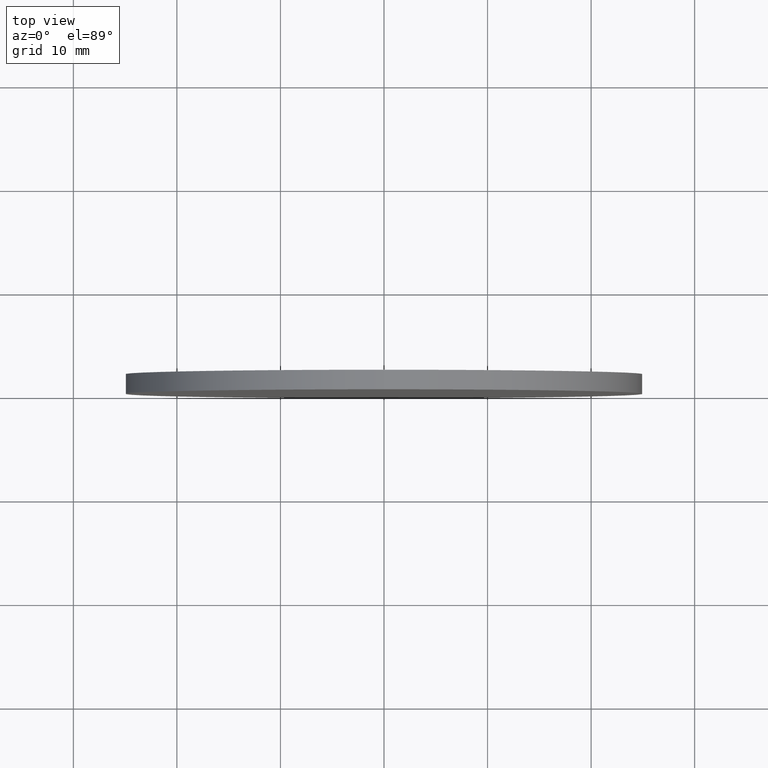
[diagram: clean part render]
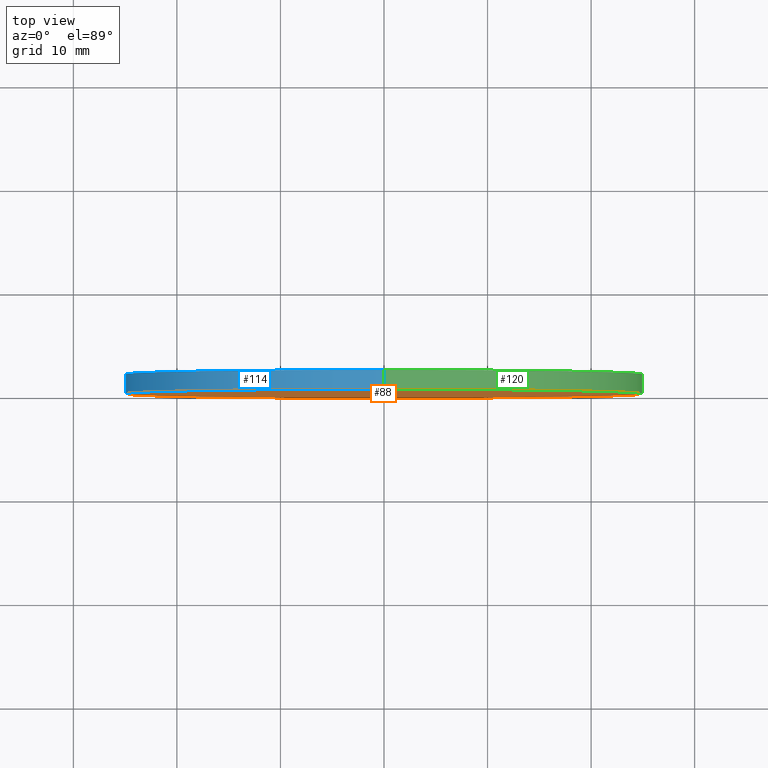
[diagram: same view with three faces highlighted in distinct colors, each labeled with its STEP entity id]
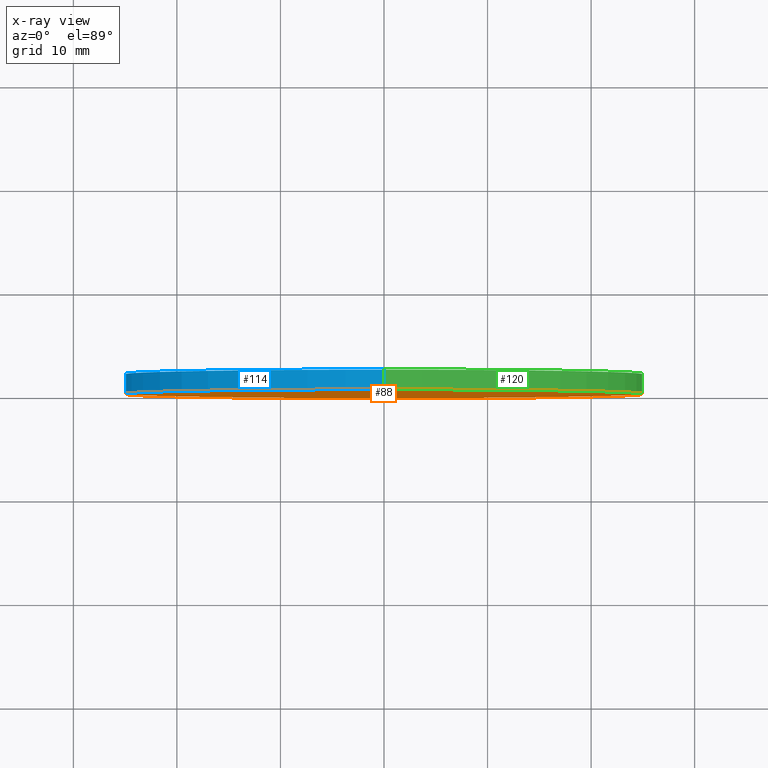
[diagram: x-ray of the same camera — body ghosted, the three highlighted faces saturated]
A machine part, top view with three faces highlighted in distinct colors.
The next image is the same camera in x-ray (body ghosted, the three faces saturated) — at least one of them is partly hidden behind the body in this view.
Their STEP definitions:

[orange] entity #88 — the highlighted planar face has unit normal (0, 1, 0).
#5 = CARTESIAN_POINT ( 'NONE',  ( 0.0000000000000000000, 0.0000000000000000000, 0.0000000000000000000 ) ) ;
#6 = VERTEX_POINT ( 'NONE', #16 ) ;
#16 = CARTESIAN_POINT ( 'NONE',  ( 3.061616997868383000E-015, 0.0000000000000000000, 25.00000000000000000 ) ) ;
#22 = CIRCLE ( 'NONE', #125, 25.00000000000000000 ) ;
#30 = FACE_OUTER_BOUND ( 'NONE', #135, .T. ) ;
#33 = ORIENTED_EDGE ( 'NONE', *, *, #105, .F. ) ;
#49 = CIRCLE ( 'NONE', #67, 25.00000000000000000 ) ;
#57 = EDGE_CURVE ( 'NONE', #6, #86, #22, .T. ) ;
#59 = DIRECTION ( 'NONE',  ( 0.0000000000000000000, 1.000000000000000000, 0.0000000000000000000 ) ) ;
#64 = DIRECTION ( 'NONE',  ( 0.0000000000000000000, 0.0000000000000000000, 1.000000000000000000 ) ) ;
#67 = AXIS2_PLACEMENT_3D ( 'NONE', #94, #108, #95 ) ;
#69 = DIRECTION ( 'NONE',  ( 0.0000000000000000000, 1.000000000000000000, 0.0000000000000000000 ) ) ;
#70 = DIRECTION ( 'NONE',  ( 0.0000000000000000000, -0.0000000000000000000, 1.000000000000000000 ) ) ;
#83 = ORIENTED_EDGE ( 'NONE', *, *, #57, .F. ) ;
#86 = VERTEX_POINT ( 'NONE', #117 ) ;
#87 = AXIS2_PLACEMENT_3D ( 'NONE', #5, #69, #70 ) ;
#88 = ADVANCED_FACE ( 'NONE', ( #30 ), #133, .F. ) ;
#94 = CARTESIAN_POINT ( 'NONE',  ( 0.0000000000000000000, 0.0000000000000000000, 0.0000000000000000000 ) ) ;
#95 = DIRECTION ( 'NONE',  ( 0.0000000000000000000, 0.0000000000000000000, 1.000000000000000000 ) ) ;
#102 = CARTESIAN_POINT ( 'NONE',  ( 0.0000000000000000000, 0.0000000000000000000, 0.0000000000000000000 ) ) ;
#105 = EDGE_CURVE ( 'NONE', #86, #6, #49, .T. ) ;
#108 = DIRECTION ( 'NONE',  ( 0.0000000000000000000, 1.000000000000000000, 0.0000000000000000000 ) ) ;
#117 = CARTESIAN_POINT ( 'NONE',  ( 0.0000000000000000000, 0.0000000000000000000, -25.00000000000000000 ) ) ;
#125 = AXIS2_PLACEMENT_3D ( 'NONE', #102, #59, #64 ) ;
#133 = PLANE ( 'NONE',  #87 ) ;
#135 = EDGE_LOOP ( 'NONE', ( #33, #83 ) ) ;

[blue] entity #114 — the highlighted cylindrical surface (partial cylindrical patch) has radius 25 mm, axis along (-0, -1, -0).
#3 = CARTESIAN_POINT ( 'NONE',  ( 0.0000000000000000000, 1.889999999999999900, 0.0000000000000000000 ) ) ;
#6 = VERTEX_POINT ( 'NONE', #16 ) ;
#8 = DIRECTION ( 'NONE',  ( 0.0000000000000000000, 0.0000000000000000000, 1.000000000000000000 ) ) ;
#12 = CARTESIAN_POINT ( 'NONE',  ( 3.061616997868383000E-015, 1.889999999999999900, 25.00000000000000000 ) ) ;
#13 = DIRECTION ( 'NONE',  ( -0.0000000000000000000, -1.000000000000000000, -0.0000000000000000000 ) ) ;
#16 = CARTESIAN_POINT ( 'NONE',  ( 3.061616997868383000E-015, 0.0000000000000000000, 25.00000000000000000 ) ) ;
#17 = EDGE_CURVE ( 'NONE', #100, #6, #25, .T. ) ;
#21 = DIRECTION ( 'NONE',  ( 0.0000000000000000000, 1.000000000000000000, 0.0000000000000000000 ) ) ;
#25 = LINE ( 'NONE', #53, #106 ) ;
#26 = LINE ( 'NONE', #63, #130 ) ;
#29 = EDGE_CURVE ( 'NONE', #139, #86, #26, .T. ) ;
#35 = EDGE_CURVE ( 'NONE', #139, #100, #36, .T. ) ;
#36 = CIRCLE ( 'NONE', #96, 25.00000000000000000 ) ;
#38 = CARTESIAN_POINT ( 'NONE',  ( 0.0000000000000000000, 1.889999999999999900, 0.0000000000000000000 ) ) ;
#39 = DIRECTION ( 'NONE',  ( -0.0000000000000000000, -1.000000000000000000, -0.0000000000000000000 ) ) ;
#45 = ORIENTED_EDGE ( 'NONE', *, *, #105, .T. ) ;
#49 = CIRCLE ( 'NONE', #67, 25.00000000000000000 ) ;
#50 = DIRECTION ( 'NONE',  ( -0.0000000000000000000, -1.000000000000000000, -0.0000000000000000000 ) ) ;
#53 = CARTESIAN_POINT ( 'NONE',  ( 3.061616997868383000E-015, 1.889999999999999900, 25.00000000000000000 ) ) ;
#58 = FACE_OUTER_BOUND ( 'NONE', #66, .T. ) ;
#60 = AXIS2_PLACEMENT_3D ( 'NONE', #38, #39, #92 ) ;
#63 = CARTESIAN_POINT ( 'NONE',  ( 0.0000000000000000000, 1.889999999999999900, -25.00000000000000000 ) ) ;
#66 = EDGE_LOOP ( 'NONE', ( #122, #89, #76, #45 ) ) ;
#67 = AXIS2_PLACEMENT_3D ( 'NONE', #94, #108, #95 ) ;
#68 = CYLINDRICAL_SURFACE ( 'NONE', #60, 25.00000000000000000 ) ;
#76 = ORIENTED_EDGE ( 'NONE', *, *, #29, .T. ) ;
#80 = CARTESIAN_POINT ( 'NONE',  ( 0.0000000000000000000, 1.889999999999999900, -25.00000000000000000 ) ) ;
#86 = VERTEX_POINT ( 'NONE', #117 ) ;
#89 = ORIENTED_EDGE ( 'NONE', *, *, #35, .F. ) ;
#92 = DIRECTION ( 'NONE',  ( 0.0000000000000000000, 0.0000000000000000000, -1.000000000000000000 ) ) ;
#94 = CARTESIAN_POINT ( 'NONE',  ( 0.0000000000000000000, 0.0000000000000000000, 0.0000000000000000000 ) ) ;
#95 = DIRECTION ( 'NONE',  ( 0.0000000000000000000, 0.0000000000000000000, 1.000000000000000000 ) ) ;
#96 = AXIS2_PLACEMENT_3D ( 'NONE', #3, #21, #8 ) ;
#100 = VERTEX_POINT ( 'NONE', #12 ) ;
#105 = EDGE_CURVE ( 'NONE', #86, #6, #49, .T. ) ;
#106 = VECTOR ( 'NONE', #13, 1000.000000000000000 ) ;
#108 = DIRECTION ( 'NONE',  ( 0.0000000000000000000, 1.000000000000000000, 0.0000000000000000000 ) ) ;
#114 = ADVANCED_FACE ( 'NONE', ( #58 ), #68, .T. ) ;
#117 = CARTESIAN_POINT ( 'NONE',  ( 0.0000000000000000000, 0.0000000000000000000, -25.00000000000000000 ) ) ;
#122 = ORIENTED_EDGE ( 'NONE', *, *, #17, .F. ) ;
#130 = VECTOR ( 'NONE', #50, 1000.000000000000000 ) ;
#139 = VERTEX_POINT ( 'NONE', #80 ) ;

[green] entity #120 — the highlighted cylindrical surface (partial cylindrical patch) has radius 25 mm, axis along (-0, -1, -0).
#2 = FACE_OUTER_BOUND ( 'NONE', #52, .T. ) ;
#6 = VERTEX_POINT ( 'NONE', #16 ) ;
#7 = AXIS2_PLACEMENT_3D ( 'NONE', #41, #43, #44 ) ;
#12 = CARTESIAN_POINT ( 'NONE',  ( 3.061616997868383000E-015, 1.889999999999999900, 25.00000000000000000 ) ) ;
#13 = DIRECTION ( 'NONE',  ( -0.0000000000000000000, -1.000000000000000000, -0.0000000000000000000 ) ) ;
#16 = CARTESIAN_POINT ( 'NONE',  ( 3.061616997868383000E-015, 0.0000000000000000000, 25.00000000000000000 ) ) ;
#17 = EDGE_CURVE ( 'NONE', #100, #6, #25, .T. ) ;
#22 = CIRCLE ( 'NONE', #125, 25.00000000000000000 ) ;
#23 = EDGE_CURVE ( 'NONE', #100, #139, #24, .T. ) ;
#24 = CIRCLE ( 'NONE', #7, 25.00000000000000000 ) ;
#25 = LINE ( 'NONE', #53, #106 ) ;
#26 = LINE ( 'NONE', #63, #130 ) ;
#29 = EDGE_CURVE ( 'NONE', #139, #86, #26, .T. ) ;
#37 = CARTESIAN_POINT ( 'NONE',  ( 0.0000000000000000000, 1.889999999999999900, 0.0000000000000000000 ) ) ;
#41 = CARTESIAN_POINT ( 'NONE',  ( 0.0000000000000000000, 1.889999999999999900, 0.0000000000000000000 ) ) ;
#43 = DIRECTION ( 'NONE',  ( 0.0000000000000000000, 1.000000000000000000, 0.0000000000000000000 ) ) ;
#44 = DIRECTION ( 'NONE',  ( 0.0000000000000000000, 0.0000000000000000000, 1.000000000000000000 ) ) ;
#47 = ORIENTED_EDGE ( 'NONE', *, *, #57, .T. ) ;
#48 = AXIS2_PLACEMENT_3D ( 'NONE', #37, #112, #110 ) ;
#50 = DIRECTION ( 'NONE',  ( -0.0000000000000000000, -1.000000000000000000, -0.0000000000000000000 ) ) ;
#52 = EDGE_LOOP ( 'NONE', ( #62, #56, #47, #129 ) ) ;
#53 = CARTESIAN_POINT ( 'NONE',  ( 3.061616997868383000E-015, 1.889999999999999900, 25.00000000000000000 ) ) ;
#56 = ORIENTED_EDGE ( 'NONE', *, *, #17, .T. ) ;
#57 = EDGE_CURVE ( 'NONE', #6, #86, #22, .T. ) ;
#59 = DIRECTION ( 'NONE',  ( 0.0000000000000000000, 1.000000000000000000, 0.0000000000000000000 ) ) ;
#62 = ORIENTED_EDGE ( 'NONE', *, *, #23, .F. ) ;
#63 = CARTESIAN_POINT ( 'NONE',  ( 0.0000000000000000000, 1.889999999999999900, -25.00000000000000000 ) ) ;
#64 = DIRECTION ( 'NONE',  ( 0.0000000000000000000, 0.0000000000000000000, 1.000000000000000000 ) ) ;
#80 = CARTESIAN_POINT ( 'NONE',  ( 0.0000000000000000000, 1.889999999999999900, -25.00000000000000000 ) ) ;
#86 = VERTEX_POINT ( 'NONE', #117 ) ;
#100 = VERTEX_POINT ( 'NONE', #12 ) ;
#102 = CARTESIAN_POINT ( 'NONE',  ( 0.0000000000000000000, 0.0000000000000000000, 0.0000000000000000000 ) ) ;
#106 = VECTOR ( 'NONE', #13, 1000.000000000000000 ) ;
#110 = DIRECTION ( 'NONE',  ( 0.0000000000000000000, 0.0000000000000000000, -1.000000000000000000 ) ) ;
#112 = DIRECTION ( 'NONE',  ( -0.0000000000000000000, -1.000000000000000000, -0.0000000000000000000 ) ) ;
#117 = CARTESIAN_POINT ( 'NONE',  ( 0.0000000000000000000, 0.0000000000000000000, -25.00000000000000000 ) ) ;
#120 = ADVANCED_FACE ( 'NONE', ( #2 ), #132, .T. ) ;
#125 = AXIS2_PLACEMENT_3D ( 'NONE', #102, #59, #64 ) ;
#129 = ORIENTED_EDGE ( 'NONE', *, *, #29, .F. ) ;
#130 = VECTOR ( 'NONE', #50, 1000.000000000000000 ) ;
#132 = CYLINDRICAL_SURFACE ( 'NONE', #48, 25.00000000000000000 ) ;
#139 = VERTEX_POINT ( 'NONE', #80 ) ;